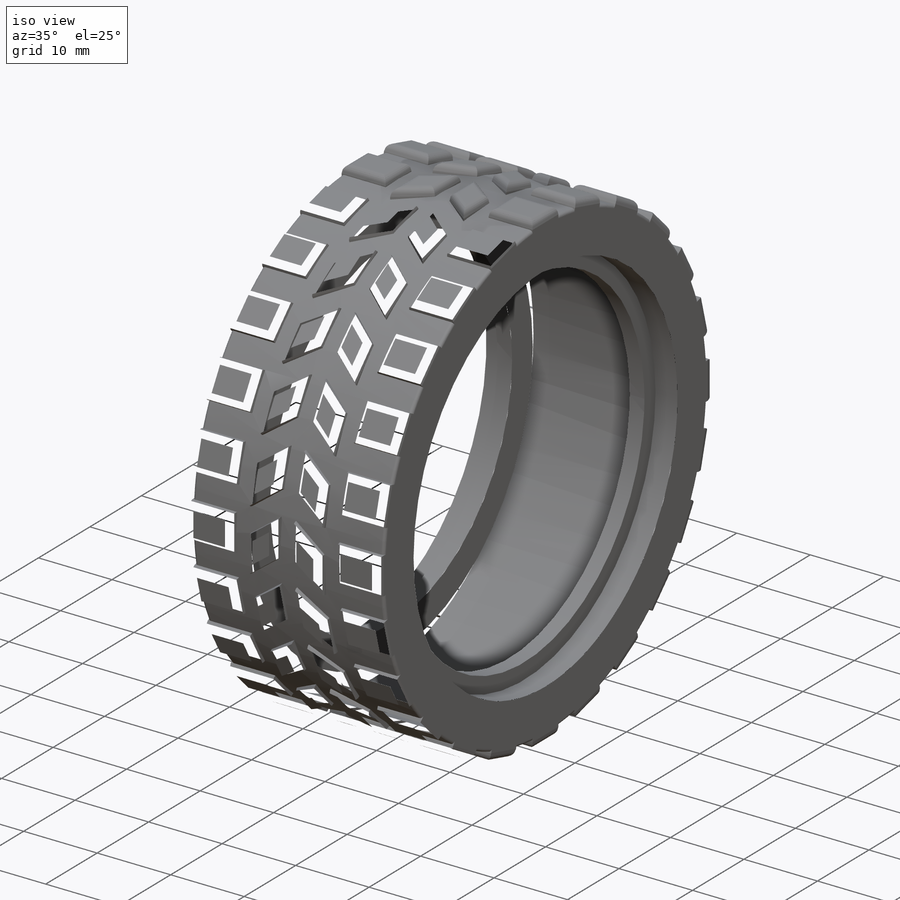
[diagram: iso view]
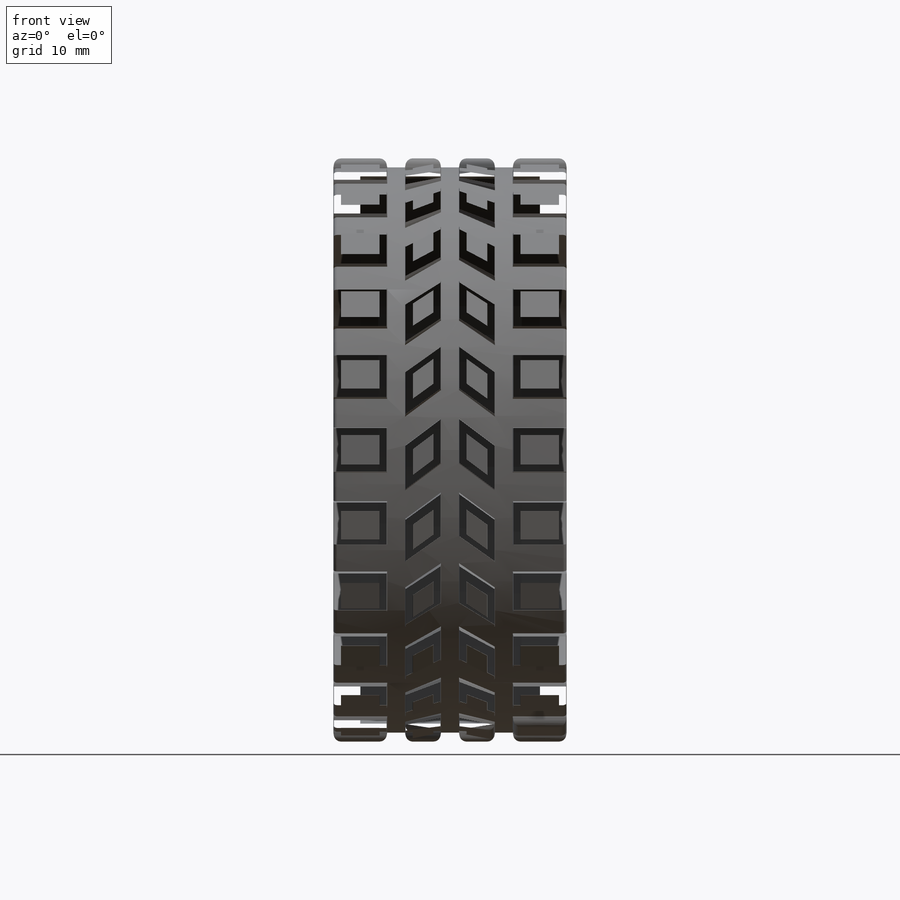
[diagram: front view]
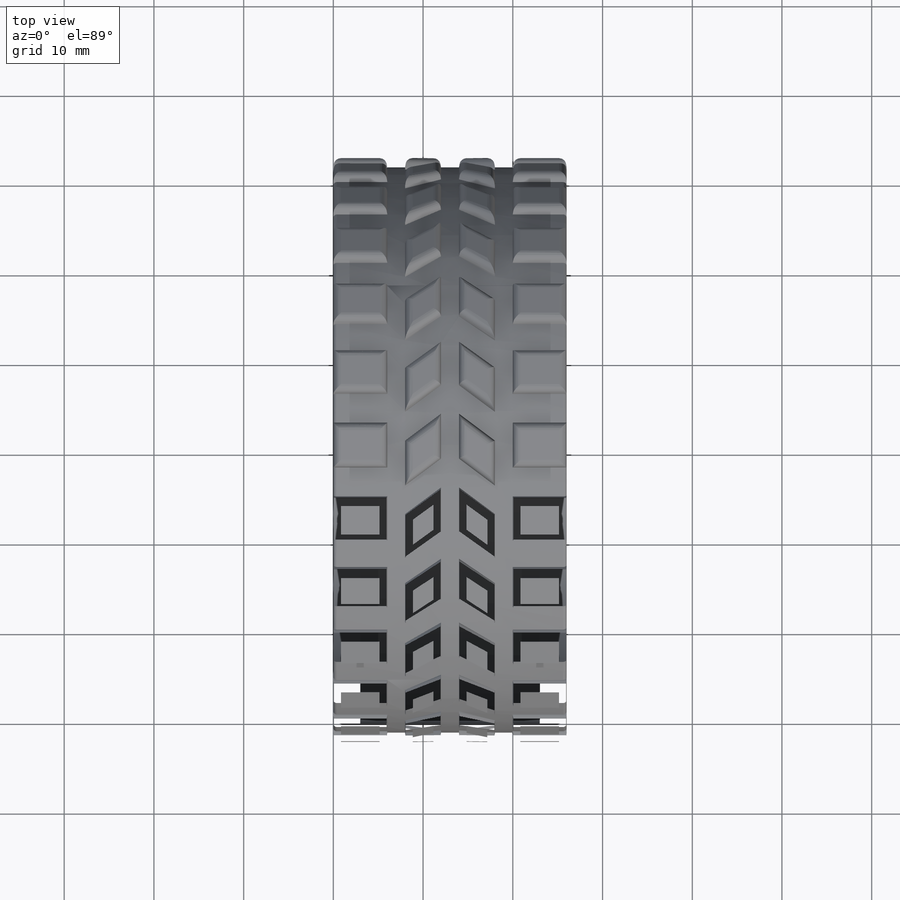
[diagram: top view]
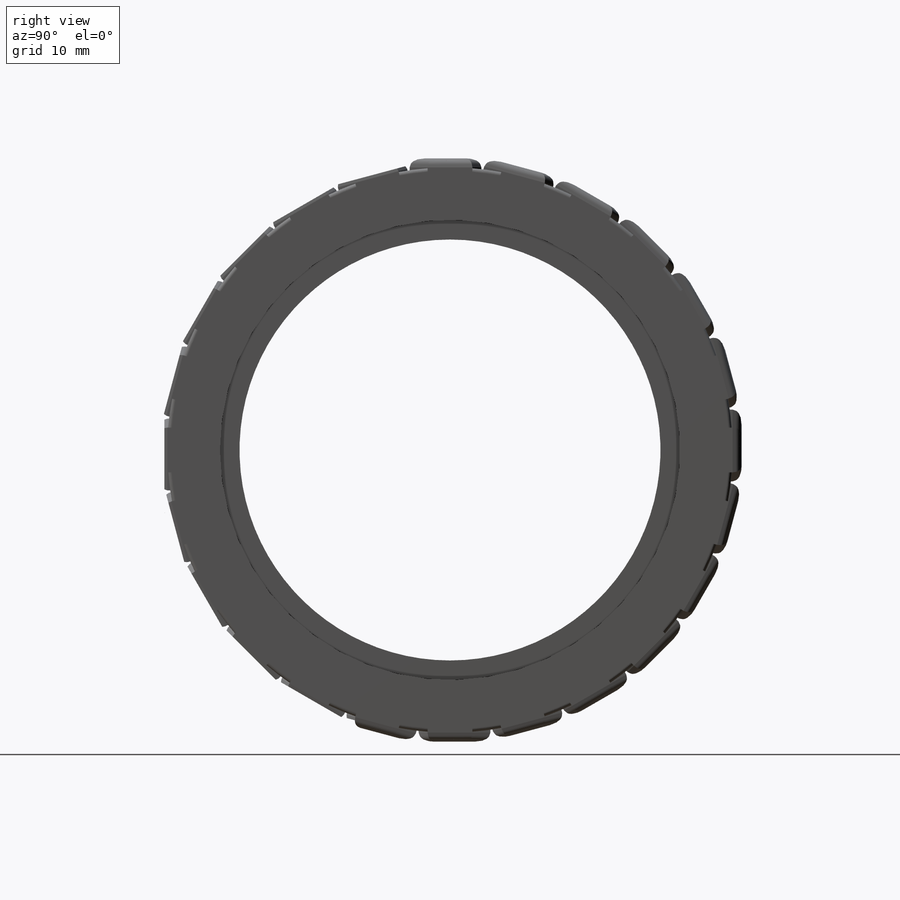
[diagram: right view]
SOLIDWORKS PART (.sldprt)
format: sldprt  version: not decoded by parser v0  size: 1,331,712 bytes
history: native  units: mm
features: plane x5, sketch x5, cut_extrude x3, fillet x3, extrude x2, mirror x2, material x1, pattern_circular x1 (+8 scaffold rows collapsed)
feature tree (30):
  scaffold x8  (default folders/planes/origin — collapsed)
  material  "Material <sin especificar>"
  plane  "Alzado"
  plane  "Planta"
  plane  "Vista lateral"
  sketch  "Croquis1"  dims[D1=63.0mm D2=~18.112062mm]
  extrude  "Saliente-Extruir1"  Depth=26mm
  plane  "Plano1"
  sketch  "Croquis2"  dims[D1=~28.239849mm]
  cut_extrude  "Cortar-Extruir1"  Depth=3mm
  mirror  "Simetría1"
  sketch  "Croquis3"  dims[D1=61.0mm]
  cut_extrude  "Cortar-Extruir2"  Depth=8mm
  plane  "Plano2"  Offset=31.5mm
  fillet  "Redondeo4"  Radius=0.4mm
  sketch  "Croquis4"  dims[c1.D1=7.0mm c1.D2=1.0mm c1.D3=1.0mm c1.D4=2.0mm c2.D3=2.0mm c2.D4=1.0mm]
  extrude  "Saliente-Extruir2"  Depth=1mm
  fillet  "Redondeo2"  Radius=0.8mm
  pattern_circular  "MatrizC9"  Count=24  [1 undecoded]
  sketch  "Croquis5"  dims[D1=23.5mm]
  cut_extrude  "Cortar-Extruir4"  Depth=3mm
  fillet  "Redondeo5"  Radius=1mm
  mirror  "Simetría2"
decode coverage: 14 of 16 modeling features carry decoded parameters
note: ~ marks probable driven/reference dimensions
note: 1 parameter value undecoded
note: suppression state not decoded; provenance and decode notes live in map.json
